MODEL slx_9ce63e9ebc83
KIND model
BLOCK [BusCreator] Bus Creator1
  DisplayOption = bar
  InheritFromInputs = on
  Inputs = 13
  Ports = [13, 1]
BLOCK [BusSelector] Bus Selector
  OutputAsBus = off
  OutputSignals = flag_s_request
  Ports = [1, 1]
BLOCK [BusSelector] Bus Selector13
  OutputAsBus = off
  OutputSignals = mvdc_path_feedback_debug,mvdc_path_matching_debug,mvdc_trajectory_driver_debug,mvdc_trajectory_driver_perf,mvdc_curvvel_tracking_debug,mvdc_tmpc_fast_debug,mvdc_actuator_debug
  Ports = [1, 7]
BLOCK [Reference] Counter Free-Running  REF=simulink/Sources/Counter
Free-Running
  Ports = [0, 1]
  SourceBlock = simulink/Sources/Counter\nFree-Running
  SourceProductBaseCode = SL
  SourceProductName = Simulink
  SourceType = Counter Free-Running
BLOCK [DataTypeConversion] Data Type Conversion14
  OutDataTypeStr = double
  RndMeth = Floor
  SaturateOnIntegerOverflow = off
BLOCK [Inport] ExternalDebug
  IconDisplay = Port number
  OutDataTypeStr = Bus: ExternalDebug
  Port = 5
BLOCK [Gain] Gain
  Gain = tS
  OutDataTypeStr = Inherit: Inherit via internal rule
  ParamDataTypeStr = Inherit: Inherit via internal rule
  SaturateOnIntegerOverflow = off
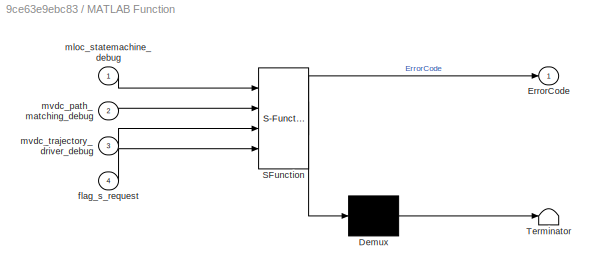
BLOCK [SubSystem] MATLAB Function
  ErrorFcn = Stateflow.Translate.translate
  PermitHierarchicalResolution = ExplicitOnly
  Ports = [4, 1]
  RequestExecContextInheritance = off
  SFBlockType = MATLAB Function
  TreatAsAtomicUnit = on
BLOCK [Demux] MATLAB Function/ Demux 
  Outputs = 1
  Ports = [1, 1]
BLOCK [S-Function] MATLAB Function/ SFunction 
  EnableBusSupport = on
  FunctionName = sf_sfun
  PortCounts = [4 2]
  Ports = [4, 2]
  SFcnIsStateOwnerBlock = off
  SFunctionDeploymentMode = off
  Tag = Stateflow S-Function mloc_debug_mes 2
BLOCK [Terminator] MATLAB Function/ Terminator 
BLOCK [Outport] MATLAB Function/ErrorCode
  IconDisplay = Port number
BLOCK [Inport] MATLAB Function/flag_s_request
  IconDisplay = Port number
  Port = 4
BLOCK [Inport] MATLAB Function/mloc_statemachine_debug
  IconDisplay = Port number
BLOCK [Inport] MATLAB Function/mvdc_path_matching_debug
  IconDisplay = Port number
  Port = 2
BLOCK [Inport] MATLAB Function/mvdc_trajectory_driver_debug
  IconDisplay = Port number
  Port = 3
BLOCK [Inport] VehicleSensorData
  IconDisplay = Port number
  OutDataTypeStr = Bus: VehicleSensorData
  Port = 6
BLOCK [Outport] debug
  IconDisplay = Port number
  OutDataTypeStr = Bus: mvdc_vehicle_dynamics_control_debug
BLOCK [Inport] mloc_statemachine_debug
  IconDisplay = Port number
  OutDataTypeStr = Bus: mloc_statemachine_debug
  Port = 3
BLOCK [Inport] mvdc_state_estimation_debug
  IconDisplay = Port number
  OutDataTypeStr = Bus: mvdc_state_estimation_debug
  Port = 2
BLOCK [Inport] mvdc_trajectory_driver_debug_all
  IconDisplay = Port number
  OutDataTypeStr = Bus: mvdc_trajectory_driver_debug_all
BLOCK [Inport] mvdc_tube_mpc_debug
  IconDisplay = Port number
  OutDataTypeStr = Bus: mvdc_tube_mpc_debug
  Port = 4
ANNOTATION (root): Author: Alexander Wischnewski (<email>) Chair of Automatic Control at TU Munich Description: Parses debug errors and creates error codes Inputs: Debug all debug information available to the system
LINE Bus Creator1:1 -> debug:1
LINE Bus Selector13:1 -> Bus Creator1:2
NET Bus Selector13:2 -> Bus Creator1:3, MATLAB Function:2
NET Bus Selector13:3 -> Bus Creator1:4, MATLAB Function:3
LINE Bus Selector13:4 -> Bus Creator1:5
LINE Bus Selector13:5 -> Bus Creator1:6
LINE Bus Selector13:6 -> Bus Creator1:7
LINE Bus Selector13:7 -> Bus Creator1:8
LINE Bus Selector:1 -> MATLAB Function:4
LINE Counter Free-Running:1 -> Data Type Conversion14:1
LINE Data Type Conversion14:1 -> Gain:1
LINE ExternalDebug:1 -> Bus Creator1:9
LINE Gain:1 -> Bus Creator1:13
LINE MATLAB Function:1 -> Bus Creator1:1
LINE VehicleSensorData:1 -> Bus Creator1:12
NET mloc_statemachine_debug:1 -> Bus Creator1:11, MATLAB Function:1
LINE mvdc_state_estimation_debug:1 -> Bus Creator1:10
LINE mvdc_trajectory_driver_debug_all:1 -> Bus Selector13:1
LINE mvdc_tube_mpc_debug:1 -> Bus Selector:1
note: NET lines group one-source signal fan-out (src -> all destinations, sorted); 1:1 wires keep LINE
CHART MATLAB Function states=1 transitions=1
  STATE_LABEL 'eML_blk_kernel()'
  STATE_LABEL 'SCRIPT:\nfunction ErrorCode = parseDebugSignals(mloc_statemachine_debug, ...\n    mvdc_path_matching_debug, mvdc_trajectory_driver_debug, flag_s_request)\n\nErrorCode = parseDebugSignals(mloc_statemachine_debug, ...\n    mvdc_path_matching_debug, mvdc_trajectory_driver_debug, flag_s_request);'
